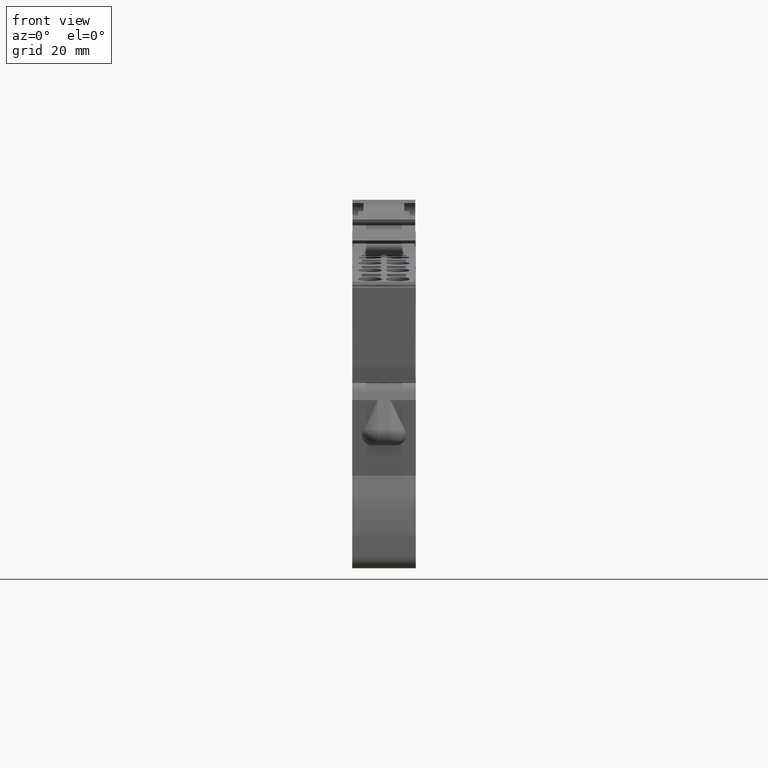
[diagram: clean part render]
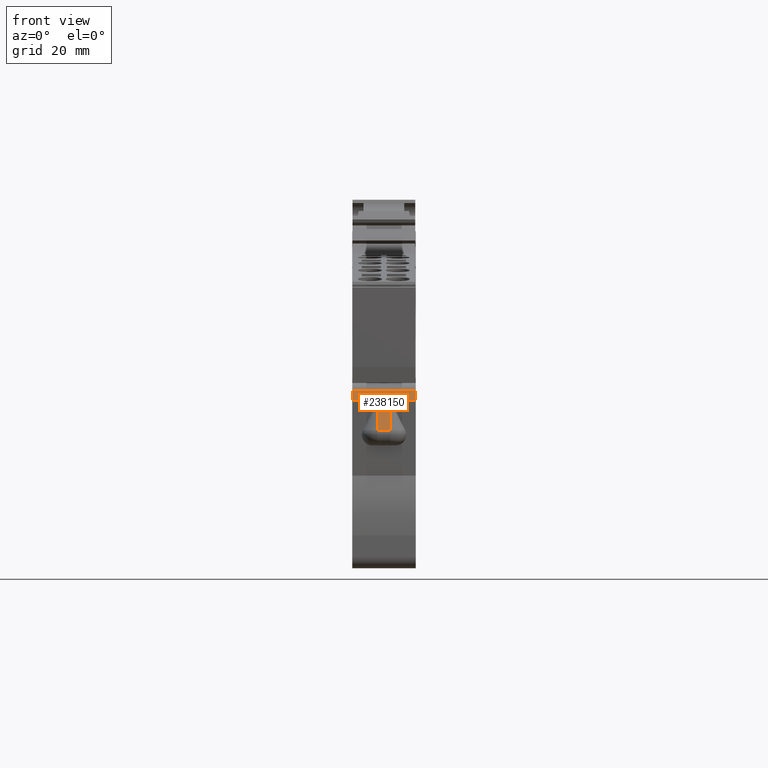
[diagram: same view with one face highlighted and labeled with its STEP entity id]
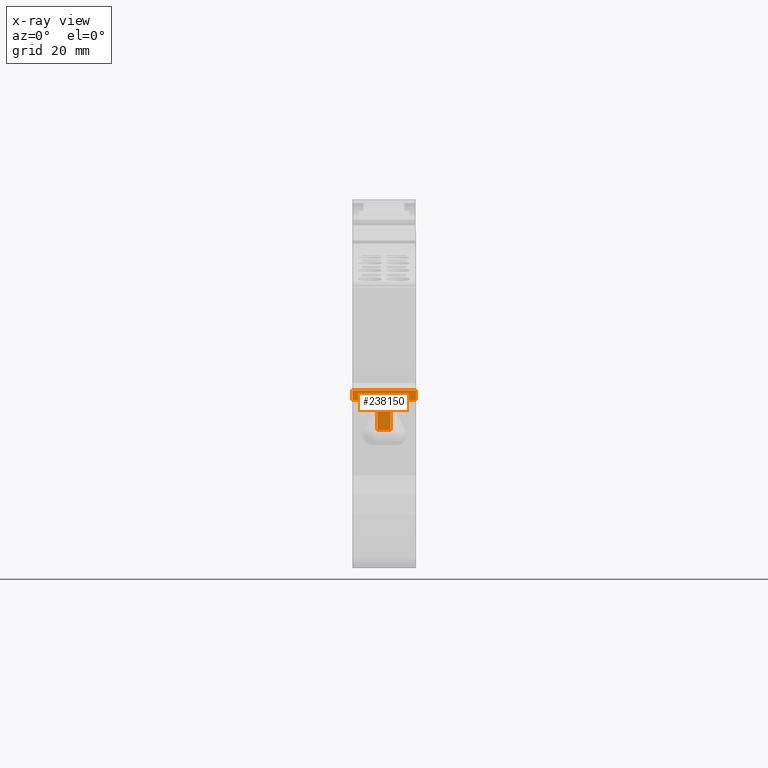
[diagram: x-ray of the same camera — body ghosted, the highlighted face saturated]
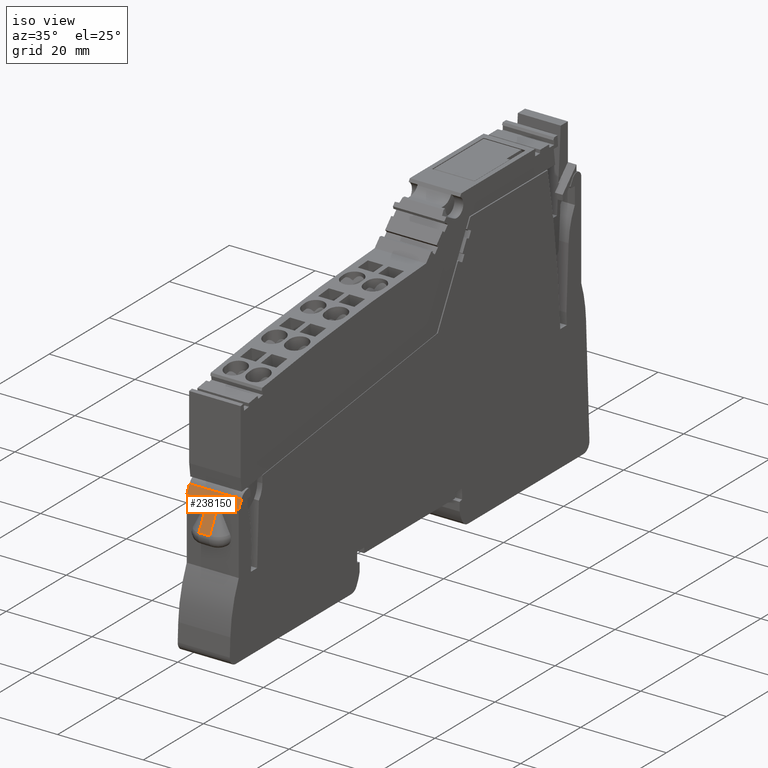
[diagram: same view with one face highlighted and labeled with its STEP entity id]
A machine part, front view. The second image highlights one B-rep face of the part: STEP entity #238150.
The next image is the same camera in x-ray: the body ghosted, the highlighted face saturated — about 0% of this face is hidden behind the body in this view.
A second angle (iso view) of the same face is appended — the face is thin or edge-on in the first view.
In plain terms, the highlighted planar face has unit normal (-0, -0.8991, 0.4377).
Its self-contained STEP definition (entity closure, byte-faithful):
#178240=CARTESIAN_POINT('',(179.617847465003,-30.8305420435832,36.45));
#178250=VERTEX_POINT('',#178240);
#178280=CARTESIAN_POINT('',(164.248217843791,-62.4038624519251,36.45));
#178290=DIRECTION('',(-0.437687596700824,-0.899127114313798,
1.07095362784262E-44));
#178300=VECTOR('',#178290,1.);
#178310=LINE('',#178280,#178300);
#178320=CARTESIAN_POINT('',(180.530802423075,-28.9550889506996,36.45));
#178330=VERTEX_POINT('',#178320);
#178340=EDGE_CURVE('',#178330,#178250,#178310,.T.);
#183180=CARTESIAN_POINT('',(180.530802423074,-28.9550889506996,24.3));
#183190=VERTEX_POINT('',#183180);
#183220=CARTESIAN_POINT('',(164.248217843791,-62.4038624519251,24.3));
#183230=DIRECTION('',(-0.437687596700824,-0.899127114313798,
1.07095362784262E-44));
#183240=VECTOR('',#183230,1.);
#183250=LINE('',#183220,#183240);
#183260=CARTESIAN_POINT('',(179.617847465003,-30.8305420435833,24.3));
#183270=VERTEX_POINT('',#183260);
#183280=EDGE_CURVE('',#183190,#183270,#183250,.T.);
#237550=CARTESIAN_POINT('',(180.530802423074,-28.9550889506996,24.3));
#237560=DIRECTION('',(0.,1.19110369467609E-44,1.));
#237570=VECTOR('',#237560,1.);
#237580=LINE('',#237550,#237570);
#237590=EDGE_CURVE('',#183190,#178330,#237580,.T.);
#237710=CARTESIAN_POINT('',(176.81959323638,-36.5789029033909,
29.1250000000011));
#237720=DIRECTION('',(-0.899127114313798,0.437687596700824,
-5.21331313544252E-45));
#237730=DIRECTION('',(0.437687596700824,0.899127114313798,
-1.07095362784262E-44));
#237740=AXIS2_PLACEMENT_3D('',#237710,#237720,#237730);
#237750=PLANE('',#237740);
#237760=CARTESIAN_POINT('',(179.617847465003,-30.8305420435833,24.3));
#237770=DIRECTION('',(0.,1.19110369467609E-44,1.));
#237780=VECTOR('',#237770,1.);
#237790=LINE('',#237760,#237780);
#237800=CARTESIAN_POINT('',(179.617847465003,-30.8305420435833,
29.1250000000011));
#237810=VERTEX_POINT('',#237800);
#237820=EDGE_CURVE('',#183270,#237810,#237790,.T.);
#237830=ORIENTED_EDGE('',*,*,#237820,.T.);
#237840=ORIENTED_EDGE('',*,*,#183280,.T.);
#237850=ORIENTED_EDGE('',*,*,#237590,.F.);
#237860=ORIENTED_EDGE('',*,*,#178340,.F.);
#237870=CARTESIAN_POINT('',(179.617847465003,-30.8305420435833,
31.6250000000011));
#237880=VERTEX_POINT('',#237870);
#237890=EDGE_CURVE('',#237880,#178250,#237790,.T.);
#237900=ORIENTED_EDGE('',*,*,#237890,.T.);
#237910=CARTESIAN_POINT('',(176.81959323638,-36.5789029033909,
31.6250000000011));
#237920=DIRECTION('',(-0.437687596700823,-0.899127114313798,0.));
#237930=VECTOR('',#237920,6.39326828019718);
#237940=LINE('',#237910,#237930);
#237950=CARTESIAN_POINT('',(176.81959323638,-36.5789029033909,
31.6250000000011));
#237960=VERTEX_POINT('',#237950);
#237970=EDGE_CURVE('',#237880,#237960,#237940,.T.);
#237980=ORIENTED_EDGE('',*,*,#237970,.F.);
#237990=CARTESIAN_POINT('',(176.81959323638,-36.5789029033909,
29.1250000000011));
#238000=DIRECTION('',(0.,1.19110369467609E-44,1.));
#238010=VECTOR('',#238000,1.);
#238020=LINE('',#237990,#238010);
#238030=CARTESIAN_POINT('',(176.81959323638,-36.5789029033909,
29.1250000000011));
#238040=VERTEX_POINT('',#238030);
#238050=EDGE_CURVE('',#238040,#237960,#238020,.T.);
#238060=ORIENTED_EDGE('',*,*,#238050,.T.);
#238070=CARTESIAN_POINT('',(176.81959323638,-36.5789029033909,
29.1250000000011));
#238080=DIRECTION('',(-0.437687596700823,-0.899127114313798,0.));
#238090=VECTOR('',#238080,6.39326828019719);
#238100=LINE('',#238070,#238090);
#238110=EDGE_CURVE('',#237810,#238040,#238100,.T.);
#238120=ORIENTED_EDGE('',*,*,#238110,.T.);
#238130=EDGE_LOOP('',(#238120,#238060,#237980,#237900,#237860,#237850,
#237840,#237830));
#238140=FACE_OUTER_BOUND('',#238130,.T.);
#238150=ADVANCED_FACE('',(#238140),#237750,.T.);